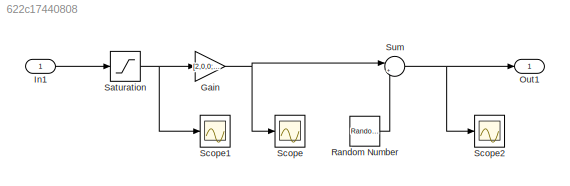
MODEL slx_622c17440808
KIND model
CONFIG AbsTol = auto
CONFIG EnableMultiTasking = off
CONFIG FixedStep = auto
CONFIG MaxStep = auto
CONFIG MinStep = auto
CONFIG RelTol = 1e-3
CONFIG SampleTimeConstraint = Unconstrained
CONFIG SolverName = VariableStepAuto
CONFIG StartTime = 0.0
CONFIG StopTime = 10.0
BLOCK [Gain] Gain
  Gain = [2,0,0;0,2,0;0,0,2]
  Multiplication = Matrix(K*u)
BLOCK [Inport] In1
  OutDataTypeStr = int8
  PortDimensions = 3
BLOCK [Outport] Out1
BLOCK [RandomNumber] Random Number
  SampleTime = 0.1
BLOCK [Saturate] Saturation
  LowerLimit = [-70, -70, -70]
  UpperLimit = [70, 70, 70]
BLOCK [Scope] Scope
  Floating = off
  NumInputPorts = 1
  Ports = [1]
  ScopeSpecificationString = Simulink.scopes.TimeScopeBlockCfg('CurrentConfiguration', extmgr.ConfigurationSet(extmgr.Configuration('Core','General UI',true),extmgr.Configuration('Core','Source UI',true),extmgr.Configuration('Sources','WiredSimulink',true),extmgr.Configuration('Visuals','Time Domain',true,'SerializedDisplays',{struct('MinYLimReal','-17.5','MaxYLimReal','157.5','YLabelReal','','MinYLimMag','0.00000','MaxYLimMa...<+1330ch>
BLOCK [Scope] Scope1
  Floating = off
  NumInputPorts = 1
  Ports = [1]
  ScopeSpecificationString = Simulink.scopes.TimeScopeBlockCfg('CurrentConfiguration', extmgr.ConfigurationSet(extmgr.Configuration('Core','General UI',true),extmgr.Configuration('Core','Source UI',true),extmgr.Configuration('Sources','WiredSimulink',true,'DataLoggingVariableName','ScopeData1'),extmgr.Configuration('Visuals','Time Domain',true,'SerializedDisplays',{struct('MinYLimReal','-8.75','MaxYLimReal','78.75','YLabelRea...<+1387ch>
BLOCK [Scope] Scope2
  Floating = off
  NumInputPorts = 1
  Ports = [1]
  ScopeSpecificationString = Simulink.scopes.TimeScopeBlockCfg('CurrentConfiguration', extmgr.ConfigurationSet(extmgr.Configuration('Core','General UI',true),extmgr.Configuration('Core','Source UI',true),extmgr.Configuration('Sources','WiredSimulink',true,'DataLoggingVariableName','ScopeData2'),extmgr.Configuration('Visuals','Time Domain',true,'SerializedDisplays',{struct('MinYLimReal','-16.44174','MaxYLimReal','159.62519','Y...<+1390ch>
BLOCK [Sum] Sum
  Inputs = |++
  Ports = [2, 1]
NET Gain:1 -> Scope:1, Sum:1
LINE In1:1 -> Saturation:1
LINE Random Number:1 -> Sum:2
NET Saturation:1 -> Gain:1, Scope1:1
NET Sum:1 -> Out1:1, Scope2:1
note: NET lines group one-source signal fan-out (src -> all destinations, sorted); 1:1 wires keep LINE
